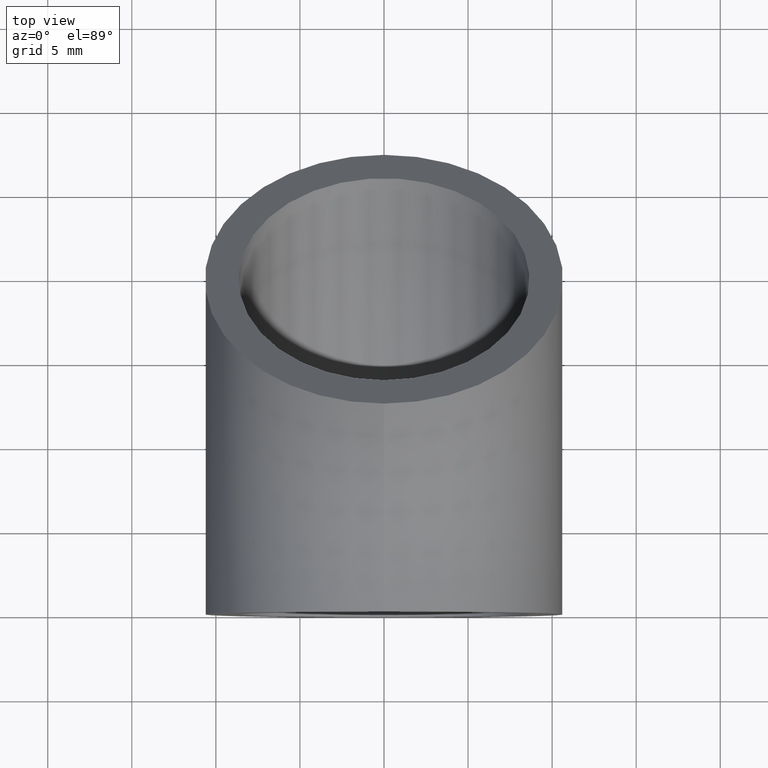
[diagram: clean part render]
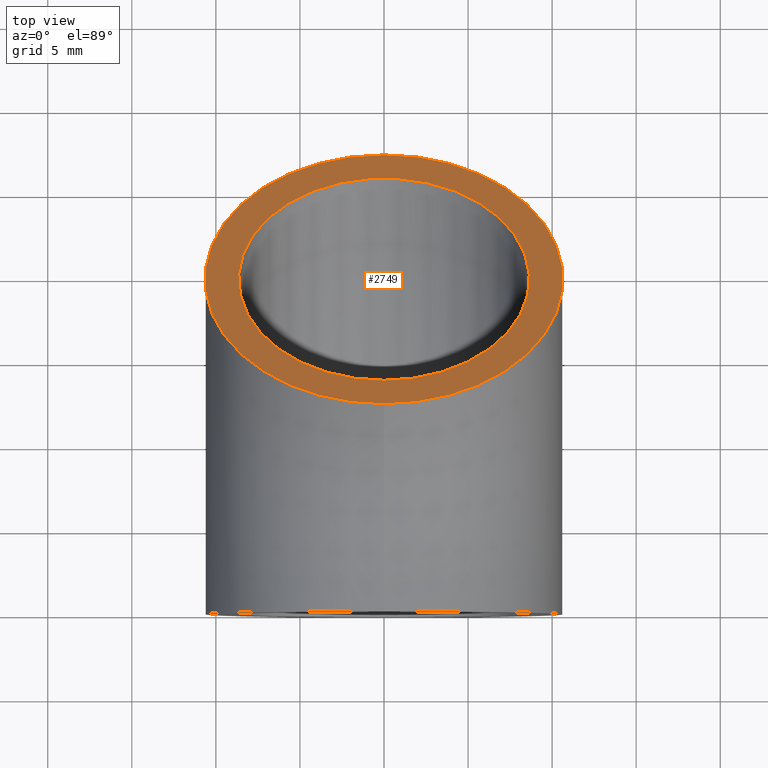
[diagram: same view with one face highlighted and labeled with its STEP entity id]
A machine part, top view. The second image highlights one B-rep face of the part: STEP entity #2749.
In plain terms, the highlighted planar face has unit normal (0, 0.7071, 0.7071).
Its self-contained STEP definition (entity closure, byte-faithful):
#633 = DIRECTION ( 'NONE',  ( 0.000000000000000000, -0.7071067811865476838, 0.7071067811865473507 ) ) ;
#1117 = ORIENTED_EDGE ( 'NONE', *, *, #2390, .T. ) ;
#1363 = DIRECTION ( 'NONE',  ( 0.000000000000000000, 0.7071067811865473507, 0.7071067811865476838 ) ) ;
#1407 = CARTESIAN_POINT ( 'NONE',  ( 0.000000000000000000, 12.26830265358660377, -12.26830265358659666 ) ) ;
#2000 = DIRECTION ( 'NONE',  ( 0.000000000000000000, -0.7071067811865477948, 0.7071067811865473507 ) ) ;
#2006 = FACE_OUTER_BOUND ( 'NONE', #5119, .T. ) ;
#2209 = DIRECTION ( 'NONE',  ( 0.000000000000000000, -0.7071067811865477948, 0.7071067811865475727 ) ) ;
#2223 = VERTEX_POINT ( 'NONE', #5386 ) ;
#2390 = EDGE_CURVE ( 'NONE', #5191, #5191, #7268, .T. ) ;
#2749 = ADVANCED_FACE ( 'NONE', ( #6625, #2006 ), #6851, .T. ) ;
#2811 = EDGE_LOOP ( 'NONE', ( #2992 ) ) ;
#2992 = ORIENTED_EDGE ( 'NONE', *, *, #5153, .F. ) ;
#3029 = CARTESIAN_POINT ( 'NONE',  ( 0.000000000000000000, 19.79898987322333781, -19.79898987322332715 ) ) ;
#4639 = CIRCLE ( 'NONE', #4893, 8.650000000000000355 ) ;
#4893 = AXIS2_PLACEMENT_3D ( 'NONE', #8749, #1363, #2209 ) ;
#5119 = EDGE_LOOP ( 'NONE', ( #1117 ) ) ;
#5153 = EDGE_CURVE ( 'NONE', #2223, #2223, #4639, .T. ) ;
#5191 = VERTEX_POINT ( 'NONE', #1407 ) ;
#5386 = CARTESIAN_POINT ( 'NONE',  ( 0.000000000000000000, 13.68251621595969780, -13.68251621595969070 ) ) ;
#5943 = DIRECTION ( 'NONE',  ( 0.000000000000000000, 0.7071067811865473507, 0.7071067811865477948 ) ) ;
#6625 = FACE_BOUND ( 'NONE', #2811, .T. ) ;
#6851 = PLANE ( 'NONE',  #9553 ) ;
#7268 = CIRCLE ( 'NONE', #8395, 10.65000000000000213 ) ;
#8053 = DIRECTION ( 'NONE',  ( 0.000000000000000000, 0.7071067811865473507, 0.7071067811865476838 ) ) ;
#8395 = AXIS2_PLACEMENT_3D ( 'NONE', #3029, #8053, #633 ) ;
#8749 = CARTESIAN_POINT ( 'NONE',  ( 0.000000000000000000, 19.79898987322333781, -19.79898987322332715 ) ) ;
#9354 = CARTESIAN_POINT ( 'NONE',  ( 0.000000000000000000, 19.79898987322333781, -19.79898987322332715 ) ) ;
#9553 = AXIS2_PLACEMENT_3D ( 'NONE', #9354, #5943, #2000 ) ;